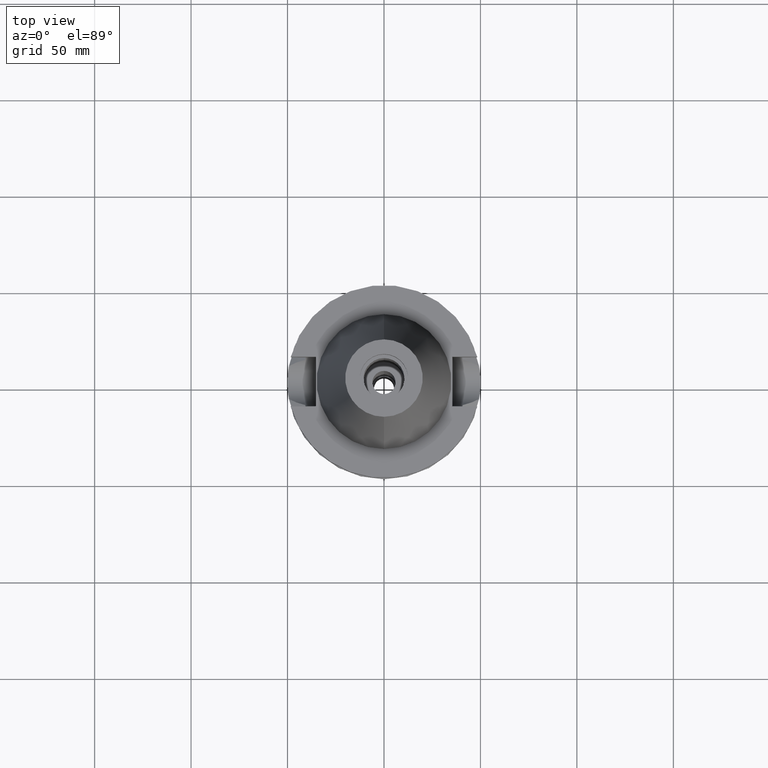
[diagram: clean part render]
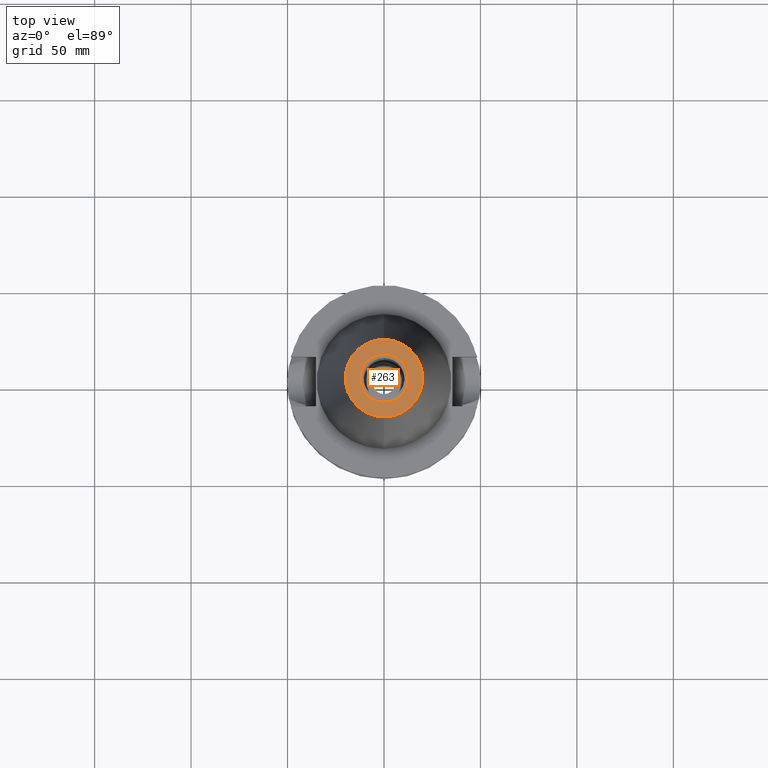
[diagram: same view with one face highlighted and labeled with its STEP entity id]
A machine part, top view. The second image highlights one B-rep face of the part: STEP entity #263.
In plain terms, the highlighted planar face has unit normal (0, 0, -1).
Its self-contained STEP definition (entity closure, byte-faithful):
#47 = EDGE_CURVE ( 'NONE', #1047, #133, #383, .T. ) ;
#54 = CARTESIAN_POINT ( 'NONE',  ( 0.0000000000000000000, -12.50000000000000000, 101.7999999999999972 ) ) ;
#133 = VERTEX_POINT ( 'NONE', #2789 ) ;
#138 = DIRECTION ( 'NONE',  ( 0.0000000000000000000, 0.0000000000000000000, -1.000000000000000000 ) ) ;
#263 = ADVANCED_FACE ( 'NONE', ( #312, #1324 ), #1079, .F. ) ;
#312 = FACE_OUTER_BOUND ( 'NONE', #2946, .T. ) ;
#338 = CIRCLE ( 'NONE', #2448, 20.07942971896000017 ) ;
#383 = CIRCLE ( 'NONE', #647, 20.07942971896000017 ) ;
#397 = DIRECTION ( 'NONE',  ( 0.0000000000000000000, 0.0000000000000000000, 1.000000000000000000 ) ) ;
#429 = ORIENTED_EDGE ( 'NONE', *, *, #1644, .F. ) ;
#562 = ORIENTED_EDGE ( 'NONE', *, *, #1331, .F. ) ;
#578 = DIRECTION ( 'NONE',  ( 0.0000000000000000000, -1.000000000000000000, 0.0000000000000000000 ) ) ;
#619 = CARTESIAN_POINT ( 'NONE',  ( 0.0000000000000000000, 1.847992019912999597E-14, 101.7999999999999972 ) ) ;
#647 = AXIS2_PLACEMENT_3D ( 'NONE', #619, #138, #3082 ) ;
#708 = CARTESIAN_POINT ( 'NONE',  ( 0.0000000000000000000, 1.847992019912999597E-14, 101.7999999999999972 ) ) ;
#806 = CARTESIAN_POINT ( 'NONE',  ( 0.0000000000000000000, 2.680629378654000054E-14, 101.7999999999999972 ) ) ;
#1047 = VERTEX_POINT ( 'NONE', #2529 ) ;
#1079 = PLANE ( 'NONE',  #1434 ) ;
#1097 = ORIENTED_EDGE ( 'NONE', *, *, #2434, .F. ) ;
#1324 = FACE_BOUND ( 'NONE', #2564, .T. ) ;
#1331 = EDGE_CURVE ( 'NONE', #133, #1047, #338, .T. ) ;
#1334 = VERTEX_POINT ( 'NONE', #1987 ) ;
#1398 = DIRECTION ( 'NONE',  ( 0.0000000000000000000, 1.000000000000000000, 0.0000000000000000000 ) ) ;
#1434 = AXIS2_PLACEMENT_3D ( 'NONE', #2070, #2826, #578 ) ;
#1553 = CIRCLE ( 'NONE', #2449, 12.50000000000000000 ) ;
#1644 = EDGE_CURVE ( 'NONE', #2281, #1334, #1553, .T. ) ;
#1805 = DIRECTION ( 'NONE',  ( 0.0000000000000000000, 0.0000000000000000000, 1.000000000000000000 ) ) ;
#1878 = CARTESIAN_POINT ( 'NONE',  ( 0.0000000000000000000, 2.680629378654000054E-14, 101.7999999999999972 ) ) ;
#1904 = ORIENTED_EDGE ( 'NONE', *, *, #47, .F. ) ;
#1987 = CARTESIAN_POINT ( 'NONE',  ( 0.0000000000000000000, 12.50000000000000000, 101.7999999999999972 ) ) ;
#2070 = CARTESIAN_POINT ( 'NONE',  ( 0.0000000000000000000, 2.471337240678999545E-14, 101.7999999999999972 ) ) ;
#2205 = CIRCLE ( 'NONE', #2736, 12.50000000000000000 ) ;
#2206 = DIRECTION ( 'NONE',  ( 0.0000000000000000000, -1.000000000000000000, 0.0000000000000000000 ) ) ;
#2281 = VERTEX_POINT ( 'NONE', #54 ) ;
#2434 = EDGE_CURVE ( 'NONE', #1334, #2281, #2205, .T. ) ;
#2448 = AXIS2_PLACEMENT_3D ( 'NONE', #708, #2503, #2206 ) ;
#2449 = AXIS2_PLACEMENT_3D ( 'NONE', #806, #1805, #2835 ) ;
#2503 = DIRECTION ( 'NONE',  ( 0.0000000000000000000, 0.0000000000000000000, -1.000000000000000000 ) ) ;
#2529 = CARTESIAN_POINT ( 'NONE',  ( 0.0000000000000000000, 20.07942971896000017, 101.7999999999999972 ) ) ;
#2564 = EDGE_LOOP ( 'NONE', ( #1097, #429 ) ) ;
#2736 = AXIS2_PLACEMENT_3D ( 'NONE', #1878, #397, #1398 ) ;
#2789 = CARTESIAN_POINT ( 'NONE',  ( 0.0000000000000000000, -20.07942971896000017, 101.7999999999999972 ) ) ;
#2826 = DIRECTION ( 'NONE',  ( 0.0000000000000000000, 0.0000000000000000000, -1.000000000000000000 ) ) ;
#2835 = DIRECTION ( 'NONE',  ( 0.0000000000000000000, -1.000000000000000000, 0.0000000000000000000 ) ) ;
#2946 = EDGE_LOOP ( 'NONE', ( #1904, #562 ) ) ;
#3082 = DIRECTION ( 'NONE',  ( 0.0000000000000000000, 1.000000000000000000, 0.0000000000000000000 ) ) ;